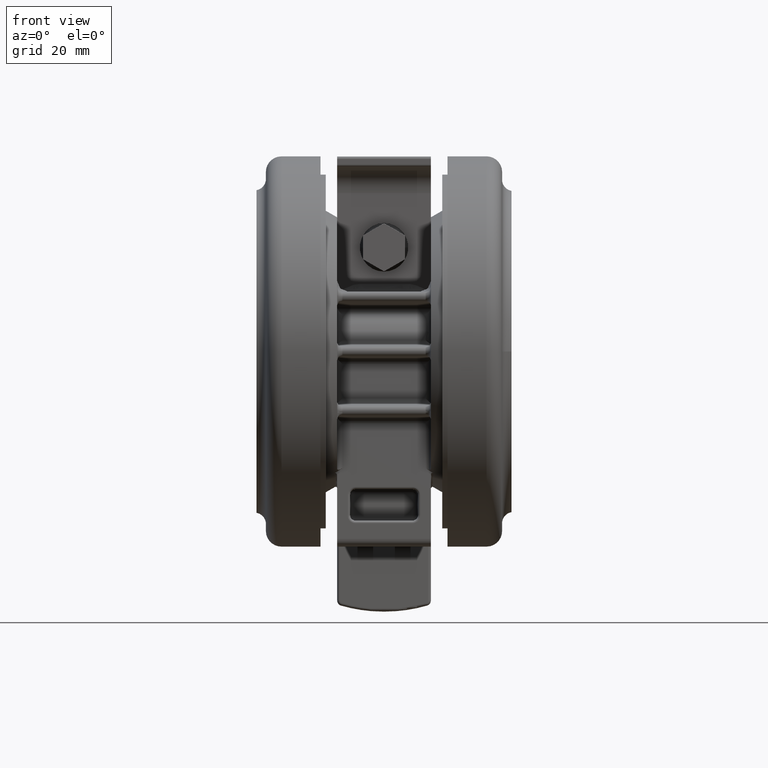
[diagram: clean part render]
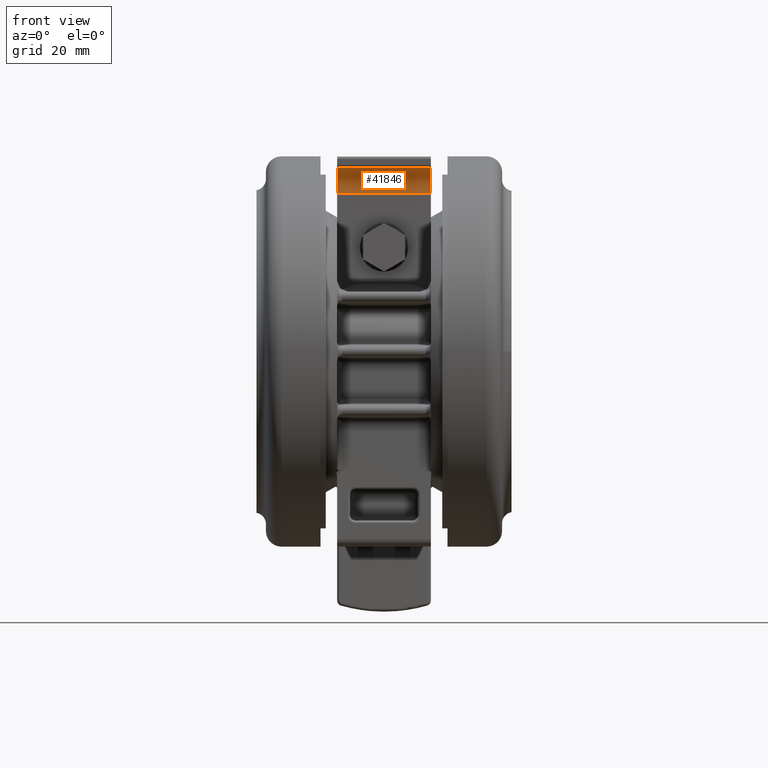
[diagram: same view with one face highlighted and labeled with its STEP entity id]
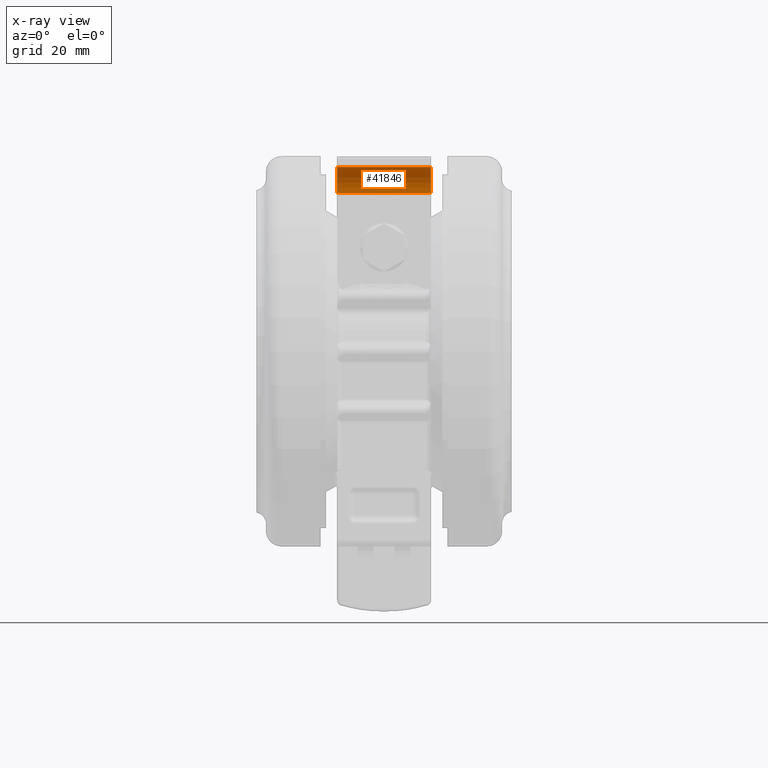
[diagram: x-ray of the same camera — body ghosted, the highlighted face saturated]
A machine part, front view. The second image highlights one B-rep face of the part: STEP entity #41846.
The next image is the same camera in x-ray: the body ghosted, the highlighted face saturated — about 0% of this face is hidden behind the body in this view.
In plain terms, the highlighted cylindrical surface (edge-blend (fillet) strip) has radius 5 mm, axis along (1, 0, 0).
Its self-contained STEP definition (entity closure, byte-faithful):
#164 = EDGE_CURVE ( 'NONE', #36368, #23974, #1413, .T. ) ;
#1413 = LINE ( 'NONE', #27688, #39976 ) ;
#4291 = CYLINDRICAL_SURFACE ( 'NONE', #13977, 5.000000000000000900 ) ;
#4446 = EDGE_CURVE ( 'NONE', #23974, #7403, #29721, .T. ) ;
#4748 = AXIS2_PLACEMENT_3D ( 'NONE', #11210, #37391, #14955 ) ;
#4773 = ORIENTED_EDGE ( 'NONE', *, *, #4446, .F. ) ;
#5813 = CARTESIAN_POINT ( 'NONE',  ( -2.327868852458908800, -35.42359420789695400, -33.49999999999994300 ) ) ;
#7403 = VERTEX_POINT ( 'NONE', #5813 ) ;
#8181 = CARTESIAN_POINT ( 'NONE',  ( -1.999999999999909000, -30.43435558706640600, -33.49999999999994300 ) ) ;
#8463 = ORIENTED_EDGE ( 'NONE', *, *, #44375, .F. ) ;
#11045 = DIRECTION ( 'NONE',  ( 0.0000000000000000000, 0.0000000000000000000, 1.000000000000000000 ) ) ;
#11210 = CARTESIAN_POINT ( 'NONE',  ( -1.999999999999909000, -30.43435558706640600, -15.49999999999994700 ) ) ;
#11769 = VECTOR ( 'NONE', #11045, 1000.000000000000000 ) ;
#11919 = DIRECTION ( 'NONE',  ( -3.035766082959412000E-015, 1.000000000000000000, 0.0000000000000000000 ) ) ;
#12917 = LINE ( 'NONE', #40810, #11769 ) ;
#13977 = AXIS2_PLACEMENT_3D ( 'NONE', #48152, #36997, #25689 ) ;
#14955 = DIRECTION ( 'NONE',  ( 3.035766082959414000E-015, -1.000000000000000000, 0.0000000000000000000 ) ) ;
#16503 = FACE_OUTER_BOUND ( 'NONE', #46676, .T. ) ;
#16744 = AXIS2_PLACEMENT_3D ( 'NONE', #8181, #34337, #11919 ) ;
#22555 = VERTEX_POINT ( 'NONE', #37297 ) ;
#23974 = VERTEX_POINT ( 'NONE', #25349 ) ;
#25349 = CARTESIAN_POINT ( 'NONE',  ( -6.999999999999909400, -30.43435558706642000, -33.49999999999994300 ) ) ;
#25689 = DIRECTION ( 'NONE',  ( -3.035766082959412000E-015, 1.000000000000000000, 0.0000000000000000000 ) ) ;
#27688 = CARTESIAN_POINT ( 'NONE',  ( -6.999999999999909400, -30.43435558706642000, -33.50099999999994800 ) ) ;
#29721 = CIRCLE ( 'NONE', #16744, 5.000000000000000900 ) ;
#31463 = DIRECTION ( 'NONE',  ( -0.0000000000000000000, -0.0000000000000000000, -1.000000000000000000 ) ) ;
#32694 = CIRCLE ( 'NONE', #4748, 4.999999999999997300 ) ;
#34337 = DIRECTION ( 'NONE',  ( 0.0000000000000000000, 0.0000000000000000000, 1.000000000000000000 ) ) ;
#35980 = ORIENTED_EDGE ( 'NONE', *, *, #164, .F. ) ;
#36368 = VERTEX_POINT ( 'NONE', #43839 ) ;
#36997 = DIRECTION ( 'NONE',  ( 0.0000000000000000000, 0.0000000000000000000, 1.000000000000000000 ) ) ;
#37297 = CARTESIAN_POINT ( 'NONE',  ( -2.327868852458908800, -35.42359420789695400, -15.49999999999994700 ) ) ;
#37391 = DIRECTION ( 'NONE',  ( 0.0000000000000000000, -0.0000000000000000000, -1.000000000000000000 ) ) ;
#39386 = EDGE_CURVE ( 'NONE', #7403, #22555, #12917, .T. ) ;
#39976 = VECTOR ( 'NONE', #31463, 1000.000000000000000 ) ;
#40810 = CARTESIAN_POINT ( 'NONE',  ( -2.327868852458913700, -35.42359420789701100, -33.50099999999994800 ) ) ;
#41846 = ADVANCED_FACE ( 'NONE', ( #16503 ), #4291, .F. ) ;
#42068 = ORIENTED_EDGE ( 'NONE', *, *, #39386, .F. ) ;
#43839 = CARTESIAN_POINT ( 'NONE',  ( -6.999999999999909400, -30.43435558706642000, -15.49999999999994700 ) ) ;
#44375 = EDGE_CURVE ( 'NONE', #22555, #36368, #32694, .T. ) ;
#46676 = EDGE_LOOP ( 'NONE', ( #4773, #35980, #8463, #42068 ) ) ;
#48152 = CARTESIAN_POINT ( 'NONE',  ( -1.999999999999909000, -30.43435558706640600, -33.50099999999994800 ) ) ;